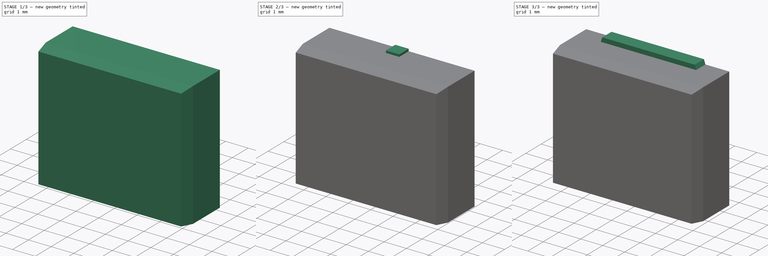
[diagram: build sequence overview — one tinted view per stage of 3, left to right]
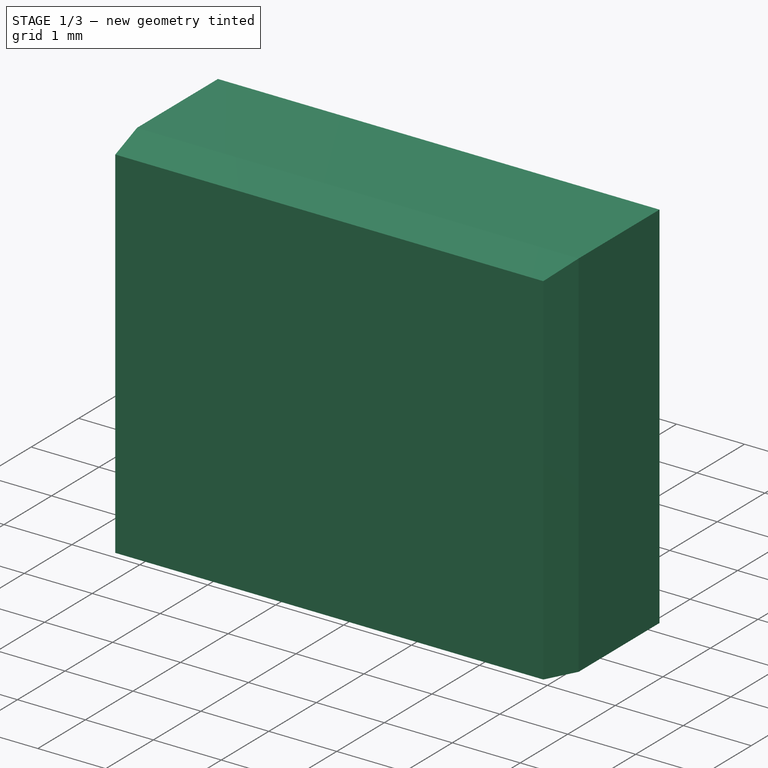
[diagram: stage 1 of 3 — iso view after this stage's code; geometry added in this stage tinted green]
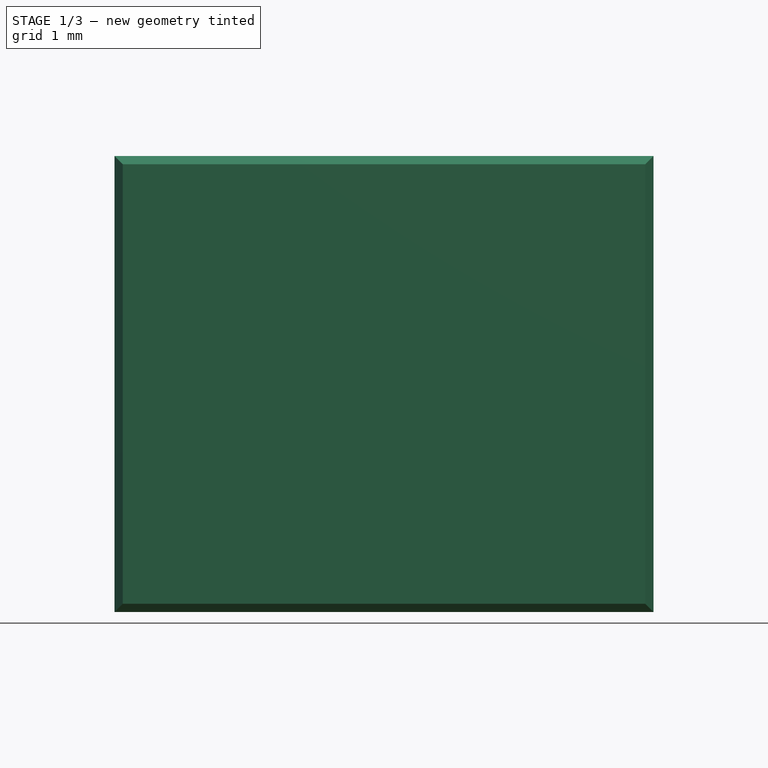
[diagram: stage 1 of 3 — front view after this stage's code; geometry added in this stage tinted green]
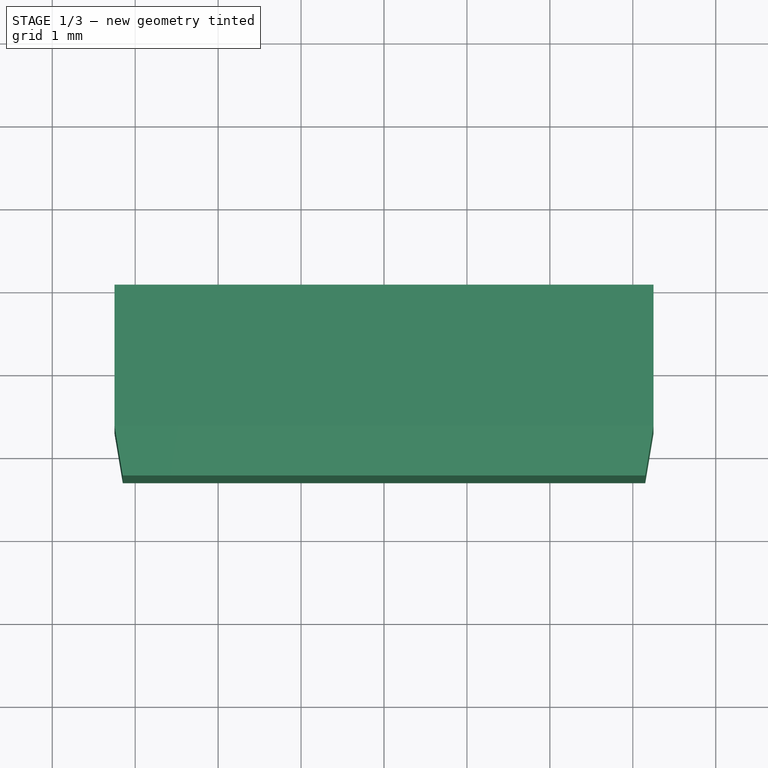
[diagram: stage 1 of 3 — top view after this stage's code; geometry added in this stage tinted green]
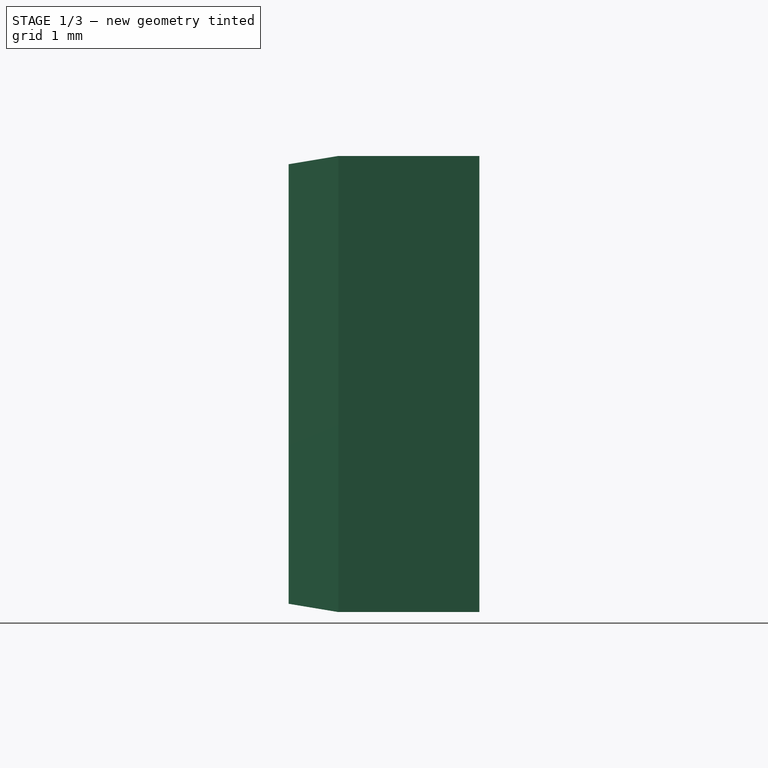
[diagram: stage 1 of 3 — right view after this stage's code; geometry added in this stage tinted green]
FCSTD DOCUMENT  (FreeCAD 0.19R24267 +99 (Git))
Label: 2SK4017_3Dmodel
License: All rights reserved
LicenseURL: http://en.wikipedia.org/wiki/All_rights_reserved
objects: PartDesign::CoordinateSystem×8, Sketcher::SketchObject×6, App::Link×5, PartDesign::Pad×4, PartDesign::Body×4, App::DocumentObjectGroup×3, PartDesign::AdditiveLoft×1, App::FeaturePython×1, App::Part×1
note: 28 computed .brp shape members not serialized (recipe doc carries the construction recipe); baked Part::Feature solids carry a one-line shape summary decoded from their .brp

FEATURE [Sketcher::SketchObject] Sketch
  FullyConstrained = true
  MapMode = 5
  Placement = pos=(0,0,0) rot=(1,0,0;1.5708rad)
  Support = -> [XZ_Plane]
  sketch-geometry (4):
    g0: LineSegment StartX=-3.25 StartY=2.75 StartZ=0 EndX=3.25 EndY=2.75 EndZ=0
    g1: LineSegment StartX=3.25 StartY=2.75 StartZ=0 EndX=3.25 EndY=-2.75 EndZ=0
    g2: LineSegment StartX=3.25 StartY=-2.75 StartZ=0 EndX=-3.25 EndY=-2.75 EndZ=0
    g3: LineSegment StartX=-3.25 StartY=-2.75 StartZ=0 EndX=-3.25 EndY=2.75 EndZ=0
  constraints (11):
    c: Coincident(g0,g1)
    c: Coincident(g1,g2)
    c: Coincident(g2,g3)
    c: Coincident(g3,g0)
    c: Horizontal(g0)
    c: Horizontal(g2)
    c: Vertical(g1)
    c: Vertical(g3)
    c: DistanceX(g0,g0) = 6.5
    c: DistanceY(g1,g1) = 5.5
    c: Symmetric(g1,g0,g-1)
FEATURE [PartDesign::Pad] Pad
  Direction = (1,1,1)
  Length = 1.7
  Length2 = 100
  Placement = pos=(0,0,0) rot=(1,0,0;1.5708rad)
  Profile = -> Sketch
  Type = 0
FEATURE [Sketcher::SketchObject] Sketch001
  AttachmentOffset = pos=(0,0,0.6) rot=(0,0,1;0rad)
  FullyConstrained = true
  MapMode = 5
  Placement = pos=(0,-2.3,1e-15) rot=(1,0,0;1.5708rad)
  Support = -> [Pad]
  sketch-geometry (4):
    g0: LineSegment StartX=-3.15 StartY=2.65 StartZ=0 EndX=3.15 EndY=2.65 EndZ=0
    g1: LineSegment StartX=3.15 StartY=2.65 StartZ=0 EndX=3.15 EndY=-2.65 EndZ=0
    g2: LineSegment StartX=3.15 StartY=-2.65 StartZ=0 EndX=-3.15 EndY=-2.65 EndZ=0
    g3: LineSegment StartX=-3.15 StartY=-2.65 StartZ=0 EndX=-3.15 EndY=2.65 EndZ=0
  constraints (11):
    c: Coincident(g0,g1)
    c: Coincident(g1,g2)
    c: Coincident(g2,g3)
    c: Coincident(g3,g0)
    c: Horizontal(g0)
    c: Horizontal(g2)
    c: Vertical(g1)
    c: Vertical(g3)
    c: DistanceX(g0,g0) = 6.3
    c: DistanceY(g3,g3) = 5.3
    c: Symmetric(g1,g0,g-1)
FEATURE [Sketcher::SketchObject] Sketch002
  ExternalGeometry = -> [Pad]
  FullyConstrained = true
  MapMode = 5
  Placement = pos=(0,-1.7,8e-16) rot=(1,0,0;1.5708rad)
  Support = -> [Pad]
  sketch-geometry (4):
    g0: LineSegment StartX=-3.25 StartY=2.75 StartZ=0 EndX=3.25 EndY=2.75 EndZ=0
    g1: LineSegment StartX=3.25 StartY=2.75 StartZ=0 EndX=3.25 EndY=-2.75 EndZ=0
    g2: LineSegment StartX=3.25 StartY=-2.75 StartZ=0 EndX=-3.25 EndY=-2.75 EndZ=0
    g3: LineSegment StartX=-3.25 StartY=-2.75 StartZ=0 EndX=-3.25 EndY=2.75 EndZ=0
  constraints (10):
    c: Coincident(g0,g1)
    c: Coincident(g1,g2)
    c: Coincident(g2,g3)
    c: Coincident(g3,g0)
    c: Horizontal(g0)
    c: Horizontal(g2)
    c: Vertical(g1)
    c: Vertical(g3)
    c: Coincident(g1,g-4)
    c: Coincident(g-3,g0)
FEATURE [PartDesign::AdditiveLoft] AdditiveLoft
  BaseFeature = -> Pad
  Closed = false
  Placement = pos=(0,0,0) rot=(1,0,0;1.5708rad)
  Profile = -> Sketch001
  Ruled = false
  Sections = -> [Sketch002]
FEATURE [PartDesign::CoordinateSystem] LCS_Origin
  AttacherType = Attacher::AttachEngine3D
  MapMode = 2
  Support = -> [X_Axis004]
FEATURE [App::FeaturePython] Variables  # WARN: FeaturePython — macro-defined, semantics opaque (R4)
  Type = App::PropertyContainer
FEATURE [App::DocumentObjectGroup] Constraints
FEATURE [App::DocumentObjectGroup] Configurations
FEATURE [PartDesign::CoordinateSystem] ______  label="原点"
  AttacherType = Attacher::AttachEngine3D
  MapMode = 1
  Placement = pos=(-3.25,6e-16,2.75) rot=(0,0,1;0rad)
  Support = -> [Pad]
FEATURE [PartDesign::CoordinateSystem] _____________________  label="ドレインリード"
  AttacherType = Attacher::AttachEngine3D
  MapMode = 1
  Placement = pos=(-3.25,-1.7,-2.75) rot=(0,0,1;0rad)
  Support = -> [Pad]
FEATURE [PartDesign::CoordinateSystem] __________________001  label="ソースリード"
  AttacherType = Attacher::AttachEngine3D
  MapMode = 1
  Placement = pos=(-3.25,-1.7,-2.75) rot=(0,0,1;0rad)
  Support = -> [Pad]
FEATURE [PartDesign::CoordinateSystem] __________________002  label="ヒートシンク001"
  AttacherType = Attacher::AttachEngine3D
  AttachmentOffset = pos=(3.25,0,1.5) rot=(0,0,1;0rad)
  MapMode = 1
  Placement = pos=(0,6e-16,4.25) rot=(0,0,1;0rad)
  Support = -> [Pad]
FEATURE [PartDesign::Body] Body  label="樹脂体"
  Group = -> [Sketch,Pad,Sketch001,Sketch002,AdditiveLoft,______,_____________________,__________________001,__________________002]
  Origin = -> Origin
  Tip = -> AdditiveLoft
FEATURE [PartDesign::CoordinateSystem] LCS_1
  AttacherType = Attacher::AttachEngine3D
  AttachmentOffset = pos=(2.6,0,1.5) rot=(0,0,1;0rad)
  MapMode = 1
  Placement = pos=(0,3e-16,2.95) rot=(0,0,1;0rad)
  Support = -> [Pad003]
FEATURE [PartDesign::Body] Body003  label="ヒートシンク"
  Group = -> [Sketch005,Pad003,LCS_1]
  Origin = -> Origin003
  Tip = -> Pad003
FEATURE [PartDesign::CoordinateSystem] LCS_2
  AttacherType = Attacher::AttachEngine3D
  MapMode = 1
  Placement = pos=(-0.3,6e-16,2.85) rot=(0,0,1;0rad)
  Support = -> [Pad001]
FEATURE [PartDesign::Body] Body001  label="リードドレイン"
  Group = -> [Sketch003,Pad001,LCS_2]
  Origin = -> Origin001
  Tip = -> Pad001
FEATURE [PartDesign::CoordinateSystem] LCS_3
  AttacherType = Attacher::AttachEngine3D
  MapMode = 1
  Placement = pos=(-0.3,6e-16,2.85) rot=(0,0,1;0rad)
  Support = -> [Pad002]
FEATURE [PartDesign::Body] Body002  label="リードゲートソース"
  Group = -> [Sketch004,Pad002,LCS_3]
  Origin = -> Origin002
  Tip = -> Pad002
FEATURE [App::DocumentObjectGroup] Parts
  Group = -> [Body,Body001,Body002,Body003]
FEATURE [App::Link] _________  label="樹脂体001"
  AttachedBy = #______
  AttachedTo = Parent Assembly#LCS_Origin
  LinkPlacement = pos=(3.25,-6e-16,-2.75) rot=(0,0,1;0rad)
  LinkedObject = -> Body
  Placement = pos=(3.25,-6e-16,-2.75) rot=(0,0,1;0rad)
  SolverId = Placement::ExpressionEngine
  expr: Placement = LCS_Origin.Placement * AttachmentOffset * ______.Placement ^ -1
FEATURE [App::Link] __________________003  label="ヒートシンク002"
  AttachedBy = #LCS_1
  AttachedTo = _________#__________________002
  AttachmentOffset = pos=(0,0.01,0) rot=(0,0,1;0rad)
  LinkPlacement = pos=(3.25,0.01,-1.45) rot=(0,0,1;0rad)
  LinkedObject = -> Body003
  Placement = pos=(3.25,0.01,-1.45) rot=(0,0,1;0rad)
FEATURE [App::Link] _____________________001  label="リードドレイン001"
  AttachedBy = #LCS_2
  AttachedTo = _________#_____________________
  AttachmentOffset = pos=(2.95,0.6,0) rot=(0,0,1;0rad)
  LinkPlacement = pos=(3.25,-1.1,-8.35) rot=(0,0,1;0rad)
  LinkedObject = -> Body001
  Placement = pos=(3.25,-1.1,-8.35) rot=(0,0,1;0rad)
  SolverId = Placement::ExpressionEngine
  expr: Placement = _________.Placement * _____________________.Placement * AttachmentOffset * LCS_2.Placement ^ -1
FEATURE [App::Link] ___________________________  label="リードゲートソース001"
  AttachedBy = #LCS_3
  AttachedTo = _________#_____________________
  AttachmentOffset = pos=(0.65,0.6,0) rot=(0,0,1;0rad)
  LinkPlacement = pos=(0.95,-1.1,-8.35) rot=(0,0,1;0rad)
  LinkedObject = -> Body002
  Placement = pos=(0.95,-1.1,-8.35) rot=(0,0,1;0rad)
  SolverId = Placement::ExpressionEngine
  expr: Placement = _________.Placement * _____________________.Placement * AttachmentOffset * LCS_3.Placement ^ -1
FEATURE [App::Link] ___________________________001  label="リードゲートソース002"
  AttachedBy = #LCS_3
  AttachedTo = _________#_____________________
  AttachmentOffset = pos=(5.25,0.6,0) rot=(0,0,1;0rad)
  LinkPlacement = pos=(5.55,-1.1,-8.35) rot=(0,0,1;0rad)
  LinkedObject = -> Body002
  Placement = pos=(5.55,-1.1,-8.35) rot=(0,0,1;0rad)
  SolverId = Placement::ExpressionEngine
  expr: Placement = _________.Placement * _____________________.Placement * AttachmentOffset * LCS_3.Placement ^ -1
FEATURE [App::Part] Assembly
  AssemblyType = Part::Link
  Group = -> [LCS_Origin,Variables,Constraints,Configurations,_________,__________________003,_____________________001,___________________________,___________________________001]
  Origin = -> Origin004
  Type = Assembly
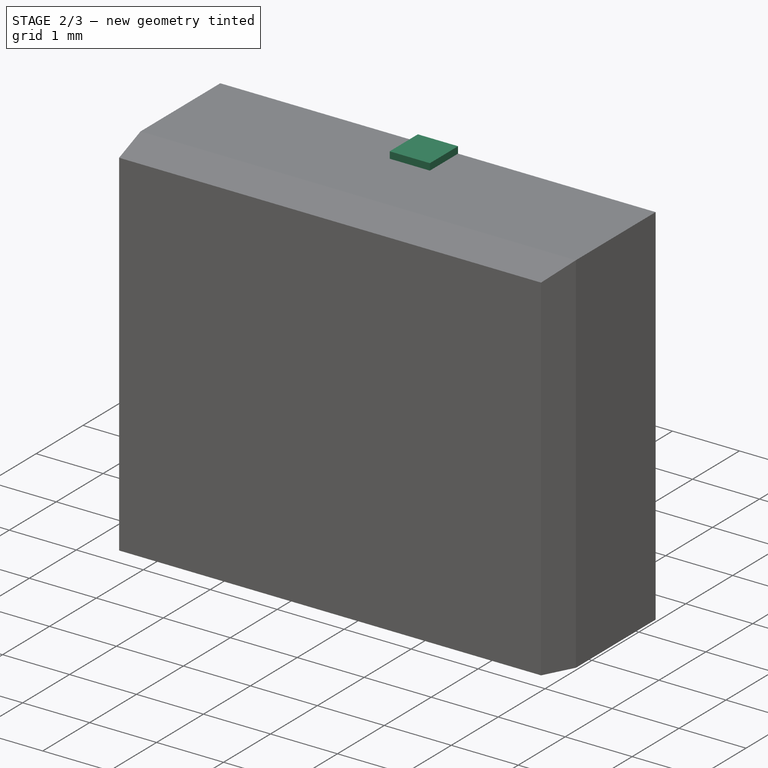
[diagram: stage 2 of 3 — iso view after this stage's code; geometry added in this stage tinted green]
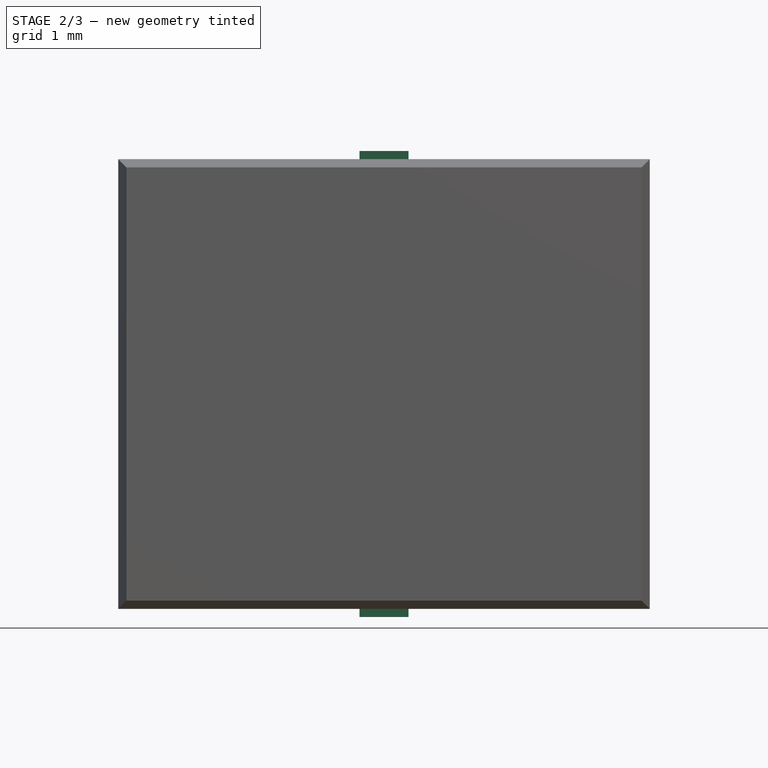
[diagram: stage 2 of 3 — front view after this stage's code; geometry added in this stage tinted green]
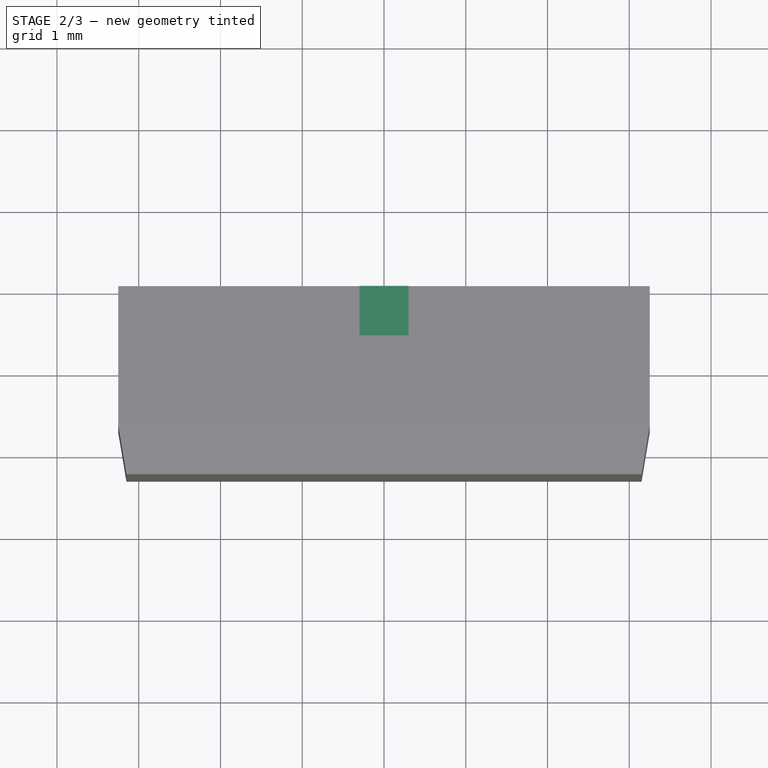
[diagram: stage 2 of 3 — top view after this stage's code; geometry added in this stage tinted green]
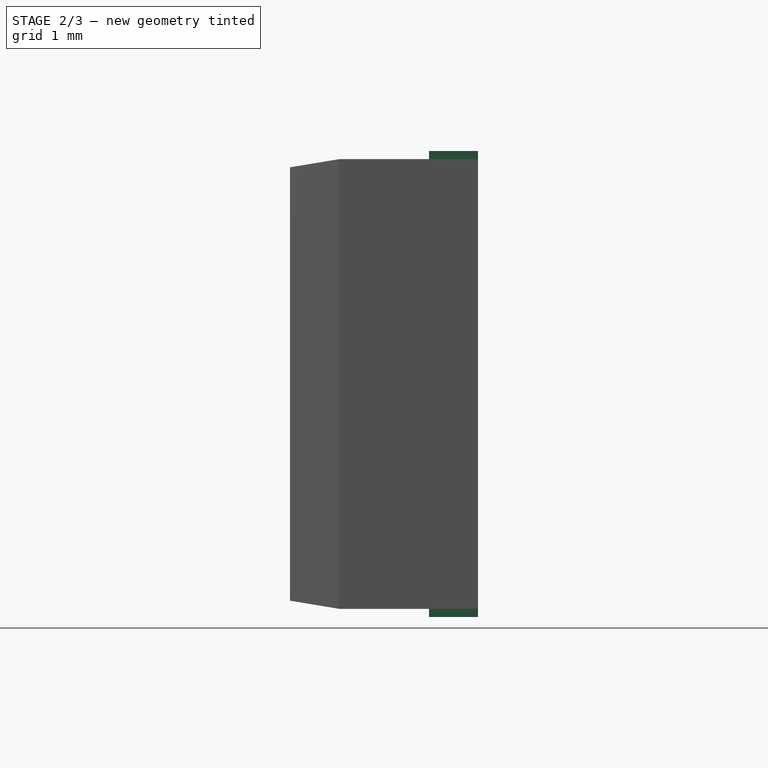
[diagram: stage 2 of 3 — right view after this stage's code; geometry added in this stage tinted green]
FEATURE [Sketcher::SketchObject] Sketch004
  FullyConstrained = true
  MapMode = 5
  Placement = pos=(0,0,0) rot=(1,0,0;1.5708rad)
  Support = -> [XZ_Plane002]
  sketch-geometry (12):
    g0: LineSegment StartX=-0.3 StartY=2.85 StartZ=0 EndX=0.3 EndY=2.85 EndZ=0
    g1: LineSegment StartX=0.3 StartY=2.85 StartZ=0 EndX=0.3 EndY=1.75 EndZ=0
    g2: LineSegment StartX=0.3 StartY=-2.85 StartZ=0 EndX=-0.3 EndY=-2.85 EndZ=0
    g3: LineSegment StartX=-0.3 StartY=-2.85 StartZ=0 EndX=-0.3 EndY=1.25 EndZ=0
    g4: LineSegment StartX=-0.4 StartY=1.75 StartZ=0 EndX=-0.3 EndY=1.75 EndZ=0
    g5: LineSegment StartX=0.4 StartY=1.75 StartZ=0 EndX=0.4 EndY=1.25 EndZ=0
    g6: LineSegment StartX=0.4 StartY=1.25 StartZ=0 EndX=0.3 EndY=1.25 EndZ=0
    g7: LineSegment StartX=-0.4 StartY=1.25 StartZ=0 EndX=-0.4 EndY=1.75 EndZ=0
    g8: LineSegment StartX=0.3 StartY=1.75 StartZ=0 EndX=0.4 EndY=1.75 EndZ=0
    g9: LineSegment StartX=0.3 StartY=1.25 StartZ=0 EndX=0.3 EndY=-2.85 EndZ=0
    g10: LineSegment StartX=-0.3 StartY=1.75 StartZ=0 EndX=-0.3 EndY=2.85 EndZ=0
    g11: LineSegment StartX=-0.3 StartY=1.25 StartZ=0 EndX=-0.4 EndY=1.25 EndZ=0
  constraints (30):
    c: Coincident(g0,g1)
    c: Coincident(g9,g2)
    c: Coincident(g2,g3)
    c: Coincident(g10,g0)
    c: Horizontal(g0)
    c: Horizontal(g2)
    c: Vertical(g1)
    c: Vertical(g3)
    c: DistanceY(g9,g1) = 5.7
    c: Symmetric(g9,g0,g-1)
    c: DistanceX(g0,g0) = 0.6
    c: Coincident(g8,g5)
    c: Coincident(g5,g6)
    c: Coincident(g11,g7)
    c: Coincident(g7,g4)
    c: Horizontal(g6)
    c: Vertical(g5)
    c: Vertical(g7)
    c: DistanceY(g7,g7) = 0.5
    c: DistanceY(g9,g5) = 4.1
    c: Symmetric(g8,g4,g-2)
    c: DistanceX(g4,g8) = 0.8
    c: Tangent(g4,g8)
    c: Coincident(g1,g8)
    c: Tangent(g1,g9)
    c: Coincident(g10,g4)
    c: Tangent(g3,g10)
    c: Coincident(g6,g9)
    c: Coincident(g11,g3)
    c: Tangent(g6,g11)
FEATURE [PartDesign::Pad] Pad002
  Direction = (1,1,1)
  Length = 0.6
  Length2 = 100
  Placement = pos=(0,0,0) rot=(1,0,0;1.5708rad)
  Profile = -> Sketch004
  Type = 0
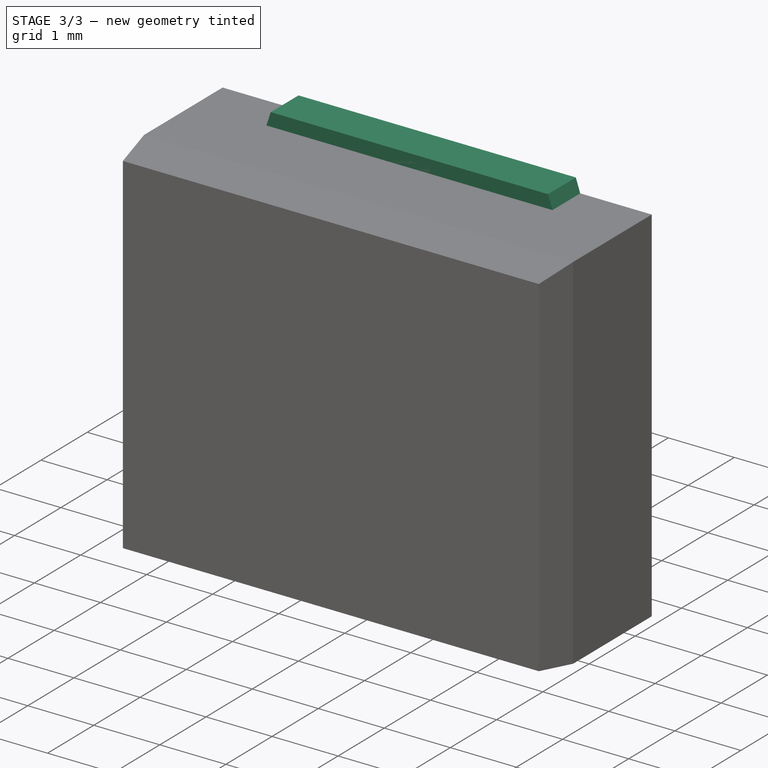
[diagram: stage 3 of 3 — iso view after this stage's code; geometry added in this stage tinted green]
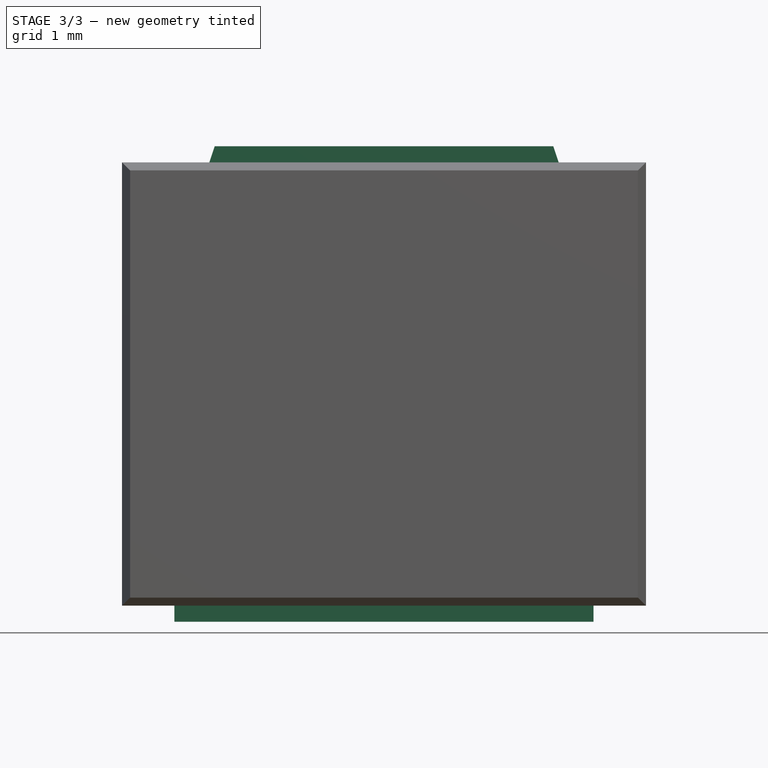
[diagram: stage 3 of 3 — front view after this stage's code; geometry added in this stage tinted green]
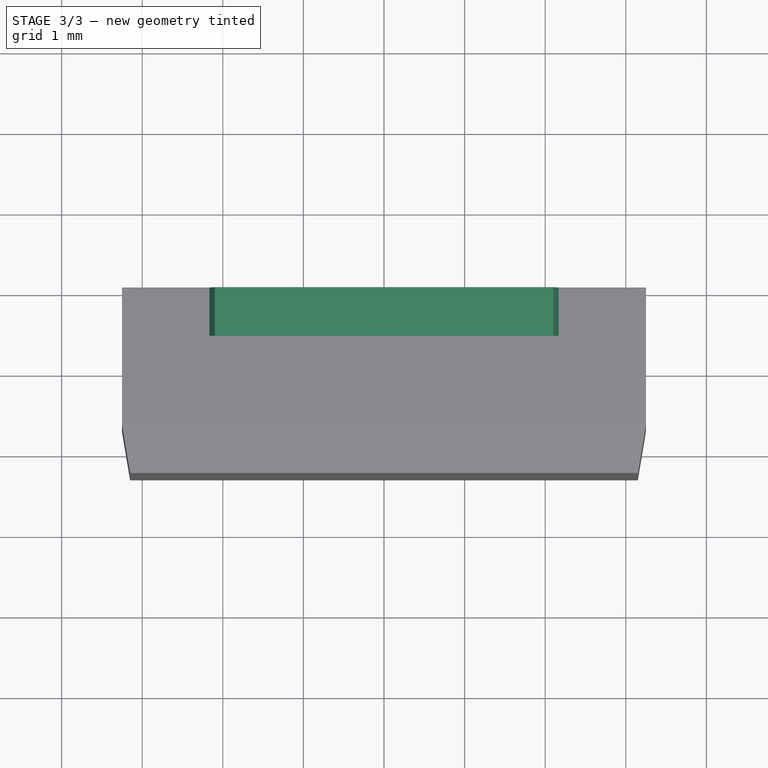
[diagram: stage 3 of 3 — top view after this stage's code; geometry added in this stage tinted green]
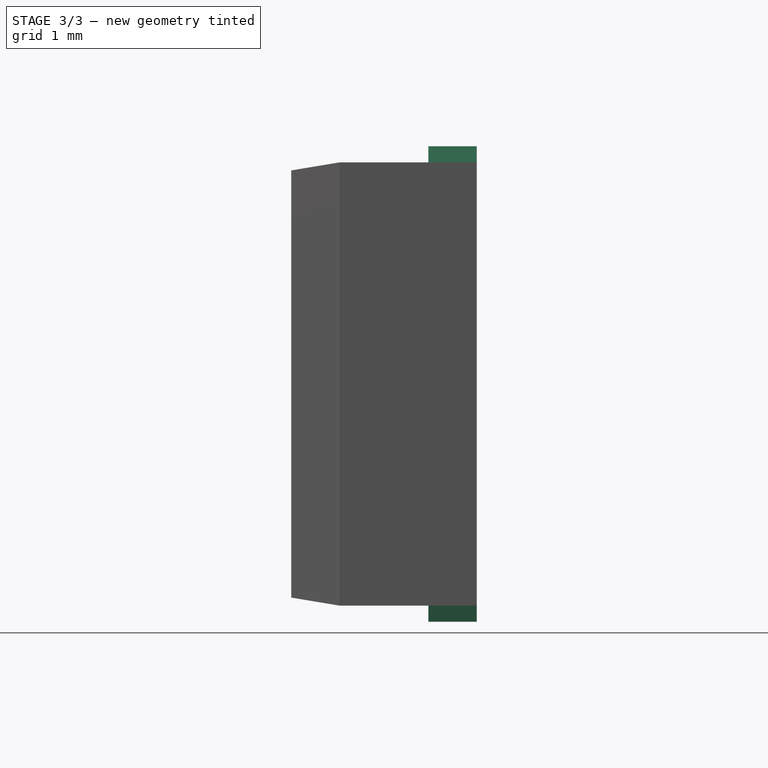
[diagram: stage 3 of 3 — right view after this stage's code; geometry added in this stage tinted green]
FEATURE [Sketcher::SketchObject] Sketch003
  FullyConstrained = true
  MapMode = 5
  Placement = pos=(0,0,0) rot=(1,0,0;1.5708rad)
  Support = -> [XZ_Plane001]
  sketch-geometry (12):
    g0: LineSegment StartX=-0.3 StartY=2.85 StartZ=0 EndX=0.3 EndY=2.85 EndZ=0
    g1: LineSegment StartX=0.3 StartY=2.85 StartZ=0 EndX=0.3 EndY=1.75 EndZ=0
    g2: LineSegment StartX=0.3 StartY=-2.85 StartZ=0 EndX=-0.3 EndY=-2.85 EndZ=0
    g3: LineSegment StartX=-0.3 StartY=-2.85 StartZ=0 EndX=-0.3 EndY=1.25 EndZ=0
    g4: LineSegment StartX=-0.55 StartY=1.75 StartZ=0 EndX=-0.3 EndY=1.75 EndZ=0
    g5: LineSegment StartX=0.55 StartY=1.75 StartZ=0 EndX=0.55 EndY=1.25 EndZ=0
    g6: LineSegment StartX=0.55 StartY=1.25 StartZ=0 EndX=0.3 EndY=1.25 EndZ=0
    g7: LineSegment StartX=-0.55 StartY=1.25 StartZ=0 EndX=-0.55 EndY=1.75 EndZ=0
    g8: LineSegment StartX=0.3 StartY=1.75 StartZ=0 EndX=0.55 EndY=1.75 EndZ=0
    g9: LineSegment StartX=0.3 StartY=1.25 StartZ=0 EndX=0.3 EndY=-2.85 EndZ=0
    g10: LineSegment StartX=-0.3 StartY=1.75 StartZ=0 EndX=-0.3 EndY=2.85 EndZ=0
    g11: LineSegment StartX=-0.3 StartY=1.25 StartZ=0 EndX=-0.55 EndY=1.25 EndZ=0
  constraints (30):
    c: Coincident(g0,g1)
    c: Coincident(g9,g2)
    c: Coincident(g2,g3)
    c: Coincident(g10,g0)
    c: Horizontal(g0)
    c: Horizontal(g2)
    c: Vertical(g1)
    c: Vertical(g3)
    c: Symmetric(g9,g0,g-1)
    c: DistanceX(g2,g2) = 0.6
    c: DistanceY(g9,g1) = 5.7
    c: Coincident(g8,g5)
    c: Coincident(g5,g6)
    c: Coincident(g11,g7)
    c: Coincident(g7,g4)
    c: Horizontal(g6)
    c: Vertical(g5)
    c: Vertical(g7)
    c: DistanceX(g11,g6) = 1.1
    c: DistanceY(g5,g5) = 0.5
    c: Symmetric(g8,g4,g-2)
    c: DistanceY(g9,g5) = 4.1
    c: Tangent(g4,g8)
    c: Coincident(g1,g8)
    c: Tangent(g1,g9)
    c: Coincident(g10,g4)
    c: Tangent(g3,g10)
    c: Coincident(g6,g9)
    c: Coincident(g11,g3)
    c: Tangent(g6,g11)
FEATURE [PartDesign::Pad] Pad001
  Direction = (1,1,1)
  Length = 0.6
  Length2 = 100
  Placement = pos=(0,0,0) rot=(1,0,0;1.5708rad)
  Profile = -> Sketch003
  Type = 0
FEATURE [Sketcher::SketchObject] Sketch005
  FullyConstrained = true
  MapMode = 5
  Placement = pos=(0,0,0) rot=(1,0,0;1.5708rad)
  Support = -> [XZ_Plane003]
  sketch-geometry (6):
    g0: LineSegment StartX=-2.6 StartY=-2.95 StartZ=0 EndX=-2.6 EndY=1.45 EndZ=0
    g1: LineSegment StartX=-2.6 StartY=1.45 StartZ=0 EndX=-2.1 EndY=2.95 EndZ=0
    g2: LineSegment StartX=-2.1 StartY=2.95 StartZ=0 EndX=2.1 EndY=2.95 EndZ=0
    g3: LineSegment StartX=2.1 StartY=2.95 StartZ=0 EndX=2.6 EndY=1.45 EndZ=0
    g4: LineSegment StartX=2.6 StartY=1.45 StartZ=0 EndX=2.6 EndY=-2.95 EndZ=0
    g5: LineSegment StartX=2.6 StartY=-2.95 StartZ=0 EndX=-2.6 EndY=-2.95 EndZ=0
  constraints (17):
    c: Vertical(g0)
    c: Coincident(g0,g1)
    c: Coincident(g1,g2)
    c: Coincident(g2,g3)
    c: Coincident(g3,g4)
    c: Vertical(g4)
    c: Coincident(g4,g5)
    c: Coincident(g5,g0)
    c: DistanceX(g2,g2) = 4.2
    c: DistanceY(g0,g0) = 4.4
    c: Horizontal(g0,g3)
    c: DistanceX(g5,g5) = 5.2
    c: Symmetric(g2,g1,g-2)
    c: Symmetric(g4,g0,g-2)
    c: DistanceY(g0,g1) = 1.5
    c: DistanceY(g4,g2) = 5.9
    c: DistanceY(g4,g-1) = 2.95
FEATURE [PartDesign::Pad] Pad003
  Direction = (1,1,1)
  Length = 0.6
  Length2 = 100
  Placement = pos=(0,0,0) rot=(1,0,0;1.5708rad)
  Profile = -> Sketch005
  Type = 0
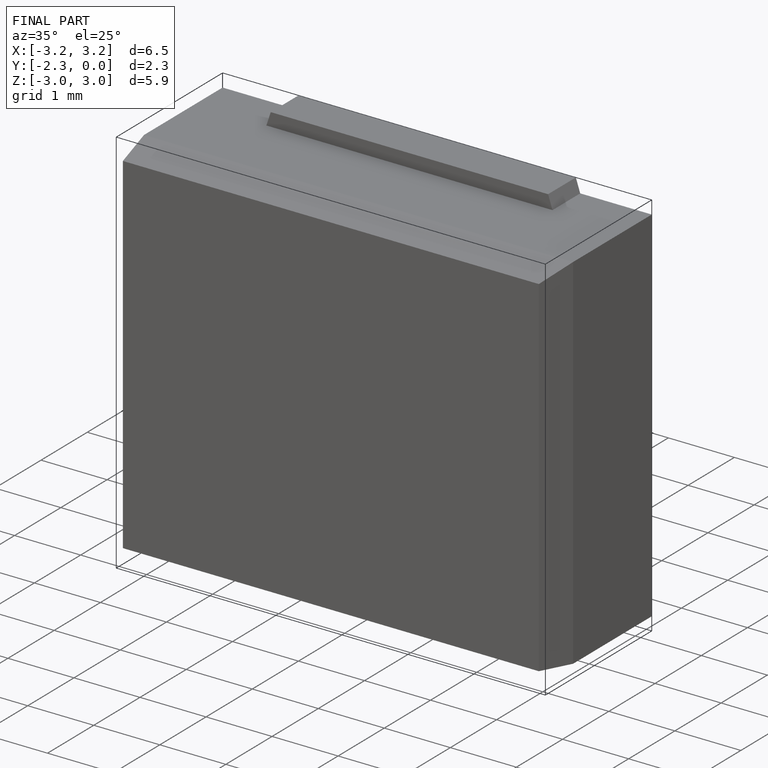
[diagram: finished part — iso view with bounding-box wireframe]
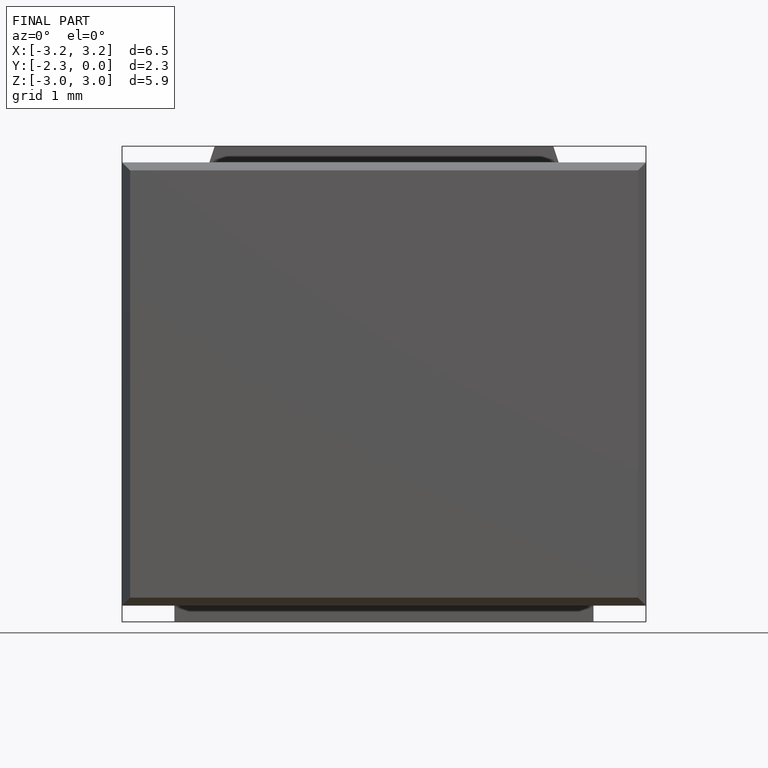
[diagram: finished part — front view with bounding-box wireframe]
